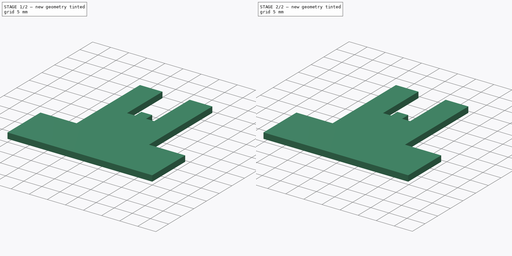
[diagram: build sequence overview — one tinted view per stage of 2, left to right]
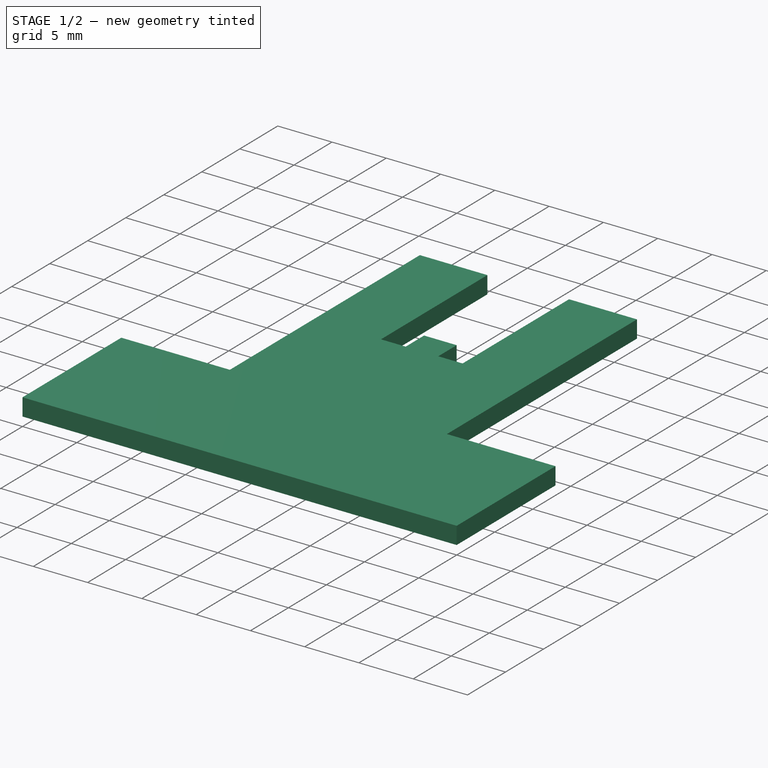
[diagram: stage 1 of 2 — iso view after this stage's code; geometry added in this stage tinted green]
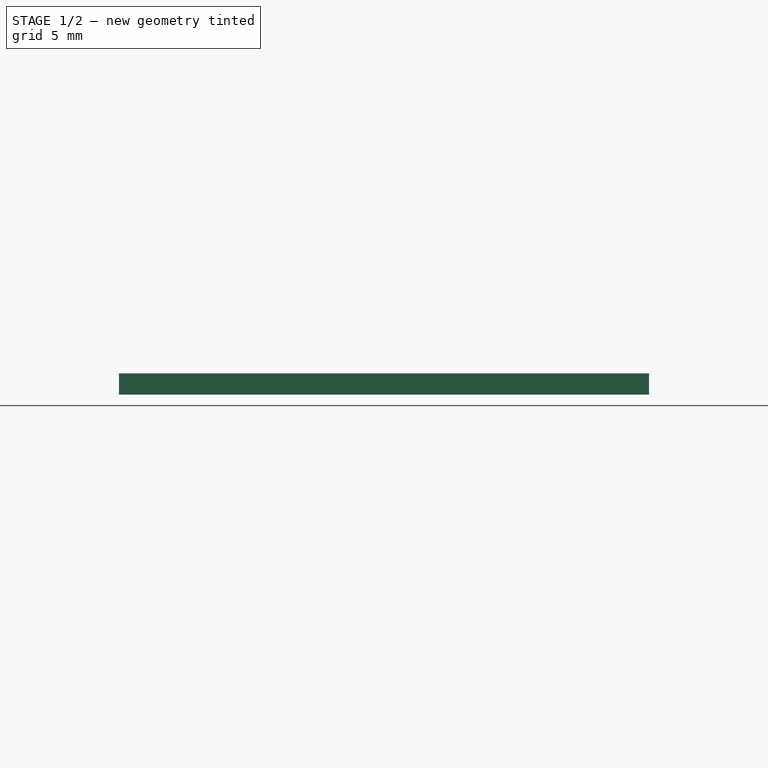
[diagram: stage 1 of 2 — front view after this stage's code; geometry added in this stage tinted green]
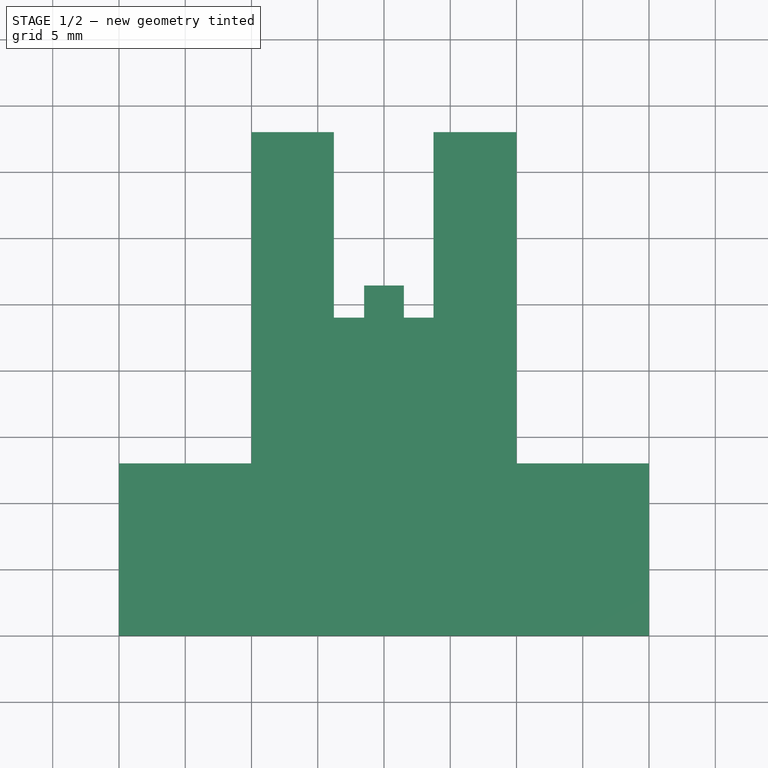
[diagram: stage 1 of 2 — top view after this stage's code; geometry added in this stage tinted green]
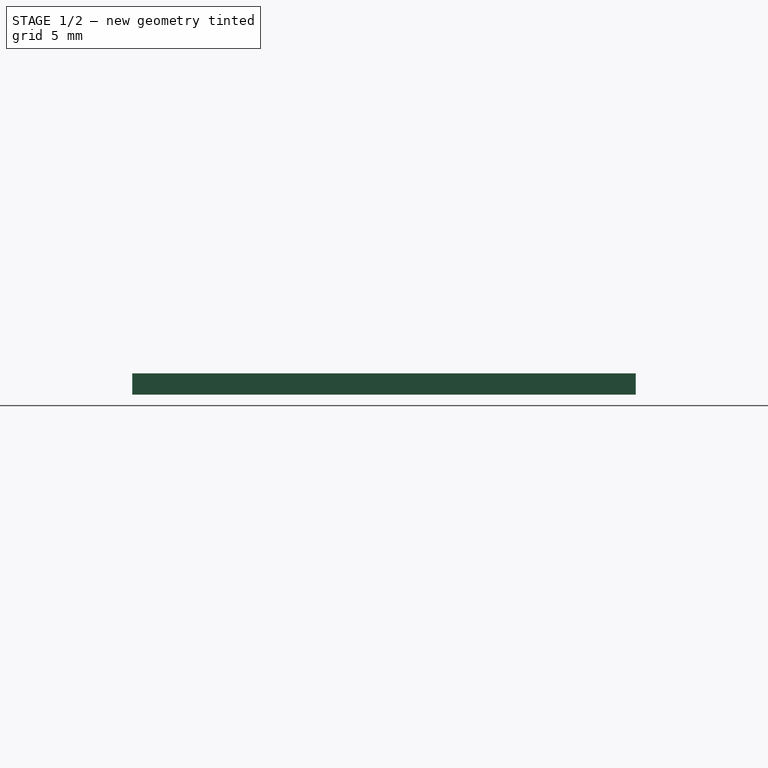
[diagram: stage 1 of 2 — right view after this stage's code; geometry added in this stage tinted green]
FCSTD DOCUMENT  (FreeCAD 0.21R0.21.1)
Label: CryoPCB_C3S3
License: All rights reserved
LicenseURL: https://en.wikipedia.org/wiki/All_rights_reserved
objects: Sketcher::SketchObject×1, PartDesign::Pad×1, PartDesign::Body×1, Part::Compound×1
note: 5 computed .brp shape members not serialized (recipe doc carries the construction recipe); baked Part::Feature solids carry a one-line shape summary decoded from their .brp

FEATURE [Sketcher::SketchObject] Sketch
  FullyConstrained = true
  MapMode = 5
  Support = -> [XY_Plane]
  sketch-geometry (16):
    g0: LineSegment StartX=0 StartY=0 StartZ=0 EndX=40 EndY=0 EndZ=0
    g1: LineSegment StartX=40 StartY=0 StartZ=0 EndX=40 EndY=13 EndZ=0
    g2: LineSegment StartX=40 StartY=13 StartZ=0 EndX=30 EndY=13 EndZ=0
    g3: LineSegment StartX=30 StartY=13 StartZ=0 EndX=30 EndY=38 EndZ=0
    g4: LineSegment StartX=30 StartY=38 StartZ=0 EndX=23.74 EndY=38 EndZ=0
    g5: LineSegment StartX=23.74 StartY=38 StartZ=0 EndX=23.74 EndY=24 EndZ=0
    g6: LineSegment StartX=23.74 StartY=24 StartZ=0 EndX=21.5 EndY=24 EndZ=0
    g7: LineSegment StartX=21.5 StartY=24 StartZ=0 EndX=21.5 EndY=26.42 EndZ=0
    g8: LineSegment StartX=21.5 StartY=26.42 StartZ=0 EndX=18.5 EndY=26.42 EndZ=0
    g9: LineSegment StartX=18.5 StartY=26.42 StartZ=0 EndX=18.5 EndY=24 EndZ=0
    g10: LineSegment StartX=18.5 StartY=24 StartZ=0 EndX=16.22 EndY=24 EndZ=0
    g11: LineSegment StartX=16.22 StartY=24 StartZ=0 EndX=16.22 EndY=38 EndZ=0
    g12: LineSegment StartX=16.22 StartY=38 StartZ=0 EndX=10 EndY=38 EndZ=0
    g13: LineSegment StartX=10 StartY=38 StartZ=0 EndX=10 EndY=13 EndZ=0
    g14: LineSegment StartX=10 StartY=13 StartZ=0 EndX=0 EndY=13 EndZ=0
    g15: LineSegment StartX=0 StartY=13 StartZ=0 EndX=0 EndY=0 EndZ=0
  constraints (47):
    c: Coincident(g-1,g0)
    c: Horizontal(g0)
    c: Coincident(g0,g1)
    c: Vertical(g1)
    c: Coincident(g1,g2)
    c: Horizontal(g2)
    c: Coincident(g2,g3)
    c: Vertical(g3)
    c: Coincident(g3,g4)
    c: Horizontal(g4)
    c: Coincident(g4,g5)
    c: Vertical(g5)
    c: Coincident(g5,g6)
    c: Horizontal(g6)
    c: Coincident(g6,g7)
    c: Vertical(g7)
    c: Coincident(g7,g8)
    c: Horizontal(g8)
    c: Coincident(g8,g9)
    c: Vertical(g9)
    c: Coincident(g9,g10)
    c: Horizontal(g10)
    c: Coincident(g10,g11)
    c: Vertical(g11)
    c: Coincident(g11,g12)
    c: Horizontal(g12)
    c: Coincident(g12,g13)
    c: Vertical(g13)
    c: Coincident(g13,g14)
    c: Horizontal(g14)
    c: Coincident(g14,g15)
    c: Coincident(g15,g0)
    c: Vertical(g15)
    c: DistanceX(g0,g0) = 40
    c: DistanceY(g1,g1) = 13
    c: DistanceX(g2,g2) = 10
    c: DistanceY(g15,g15) = 13
    c: DistanceY(g13,g13) = 25
    c: DistanceY(g3,g3) = 25
    c: DistanceY(g7,g7) = 2.42
    c: DistanceY(g9,g9) = 2.42
    c: DistanceX(g8,g8) = 3
    c: DistanceX(g6,g6) = 2.24
    c: DistanceX(g10,g10) = 2.28
    c: DistanceX(g4,g4) = 6.26
    c: DistanceX(g12,g12) = 6.22
    c: DistanceY(g11,g11) = 14
FEATURE [PartDesign::Pad] Pad
  AttacherType = Attacher::AttachEngine3D
  Direction = (0,0,1)
  Length = 1.6
  Length2 = 10
  Profile = -> Sketch
  ReferenceAxis = -> Sketch [N_Axis]
  Type = 0
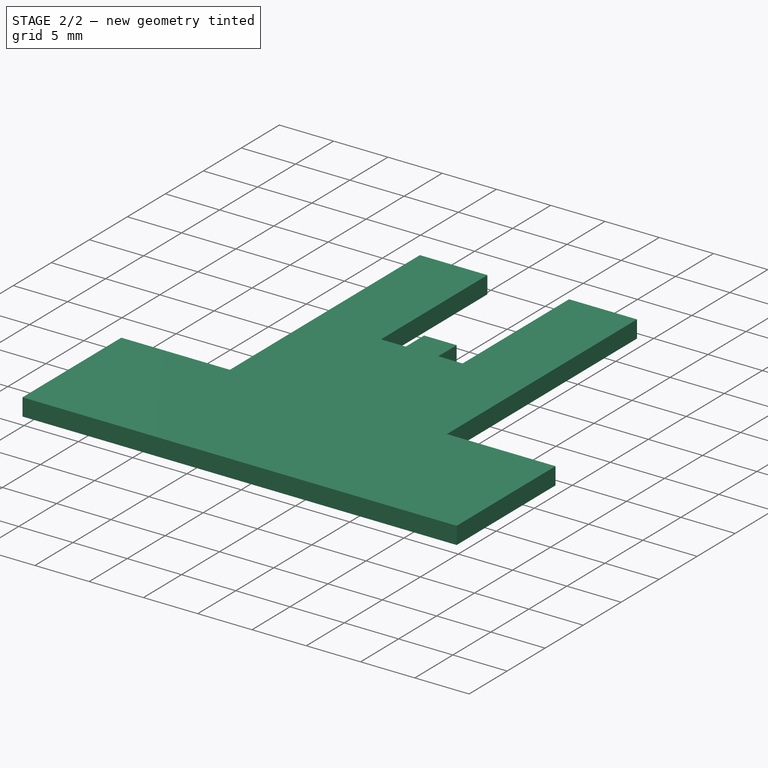
[diagram: stage 2 of 2 — iso view after this stage's code; geometry added in this stage tinted green]
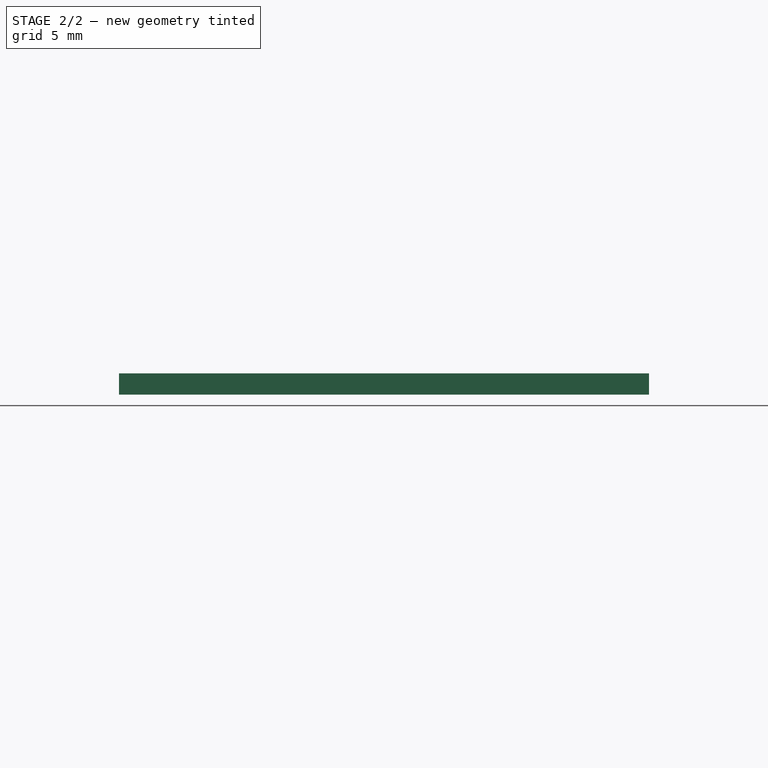
[diagram: stage 2 of 2 — front view after this stage's code; geometry added in this stage tinted green]
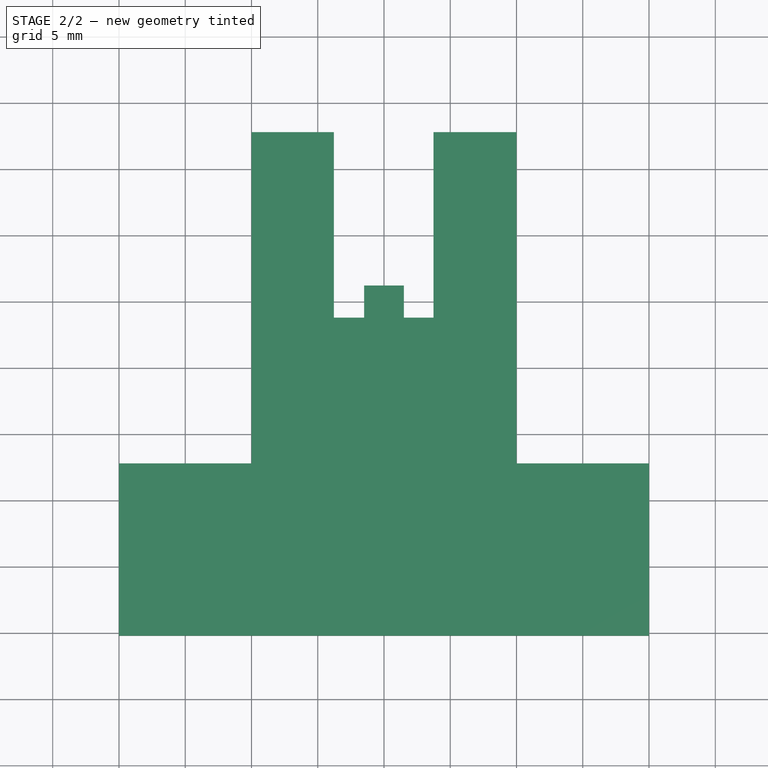
[diagram: stage 2 of 2 — top view after this stage's code; geometry added in this stage tinted green]
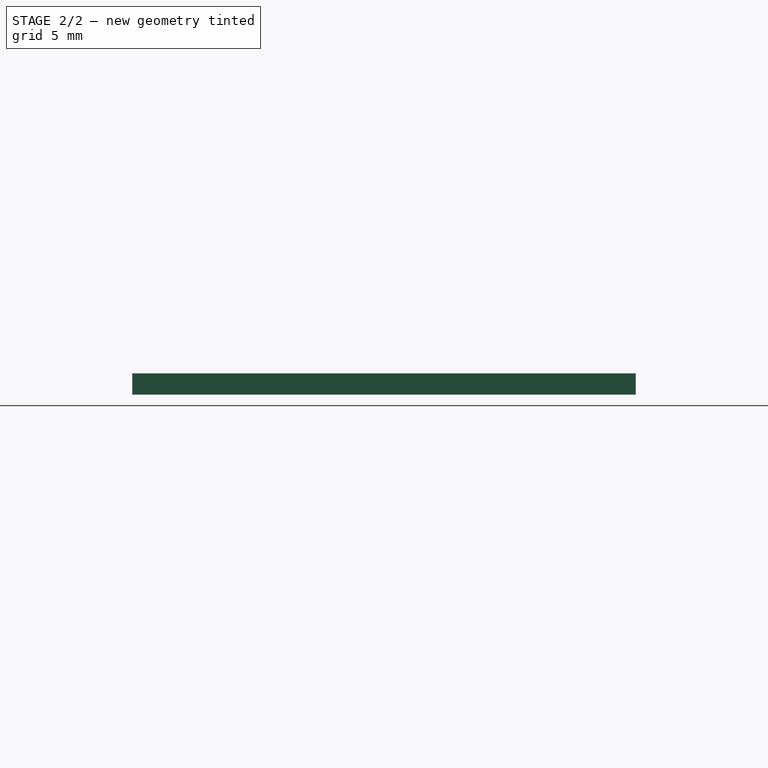
[diagram: stage 2 of 2 — right view after this stage's code; geometry added in this stage tinted green]
FEATURE [PartDesign::Body] Body  label="PCBBaseMaterial"
  AttacherType = Attacher::AttachEngine3D
  Group = -> [Sketch,Pad]
  MapMode = 5
  Origin = -> Origin
  Placement = pos=(0,0,1.6) rot=(0,0,1;0rad)
  Support = -> [Pad]
  Tip = -> Pad
FEATURE [Part::Compound] Compound
  Links = -> [Body]
  Placement = pos=(-20,-25.21,0) rot=(0,0,1;0rad)
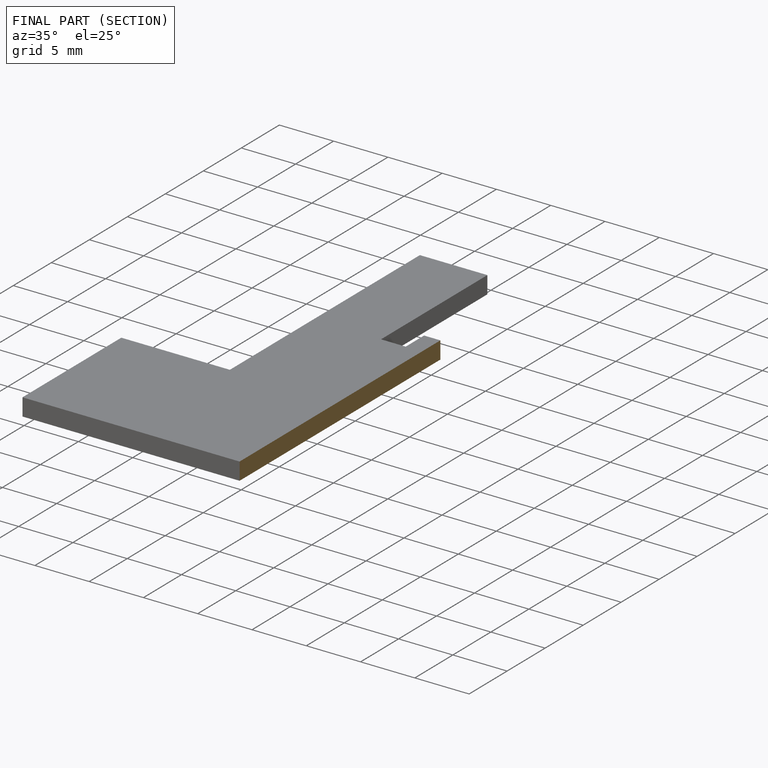
[diagram: finished part — half-section view (interior)]
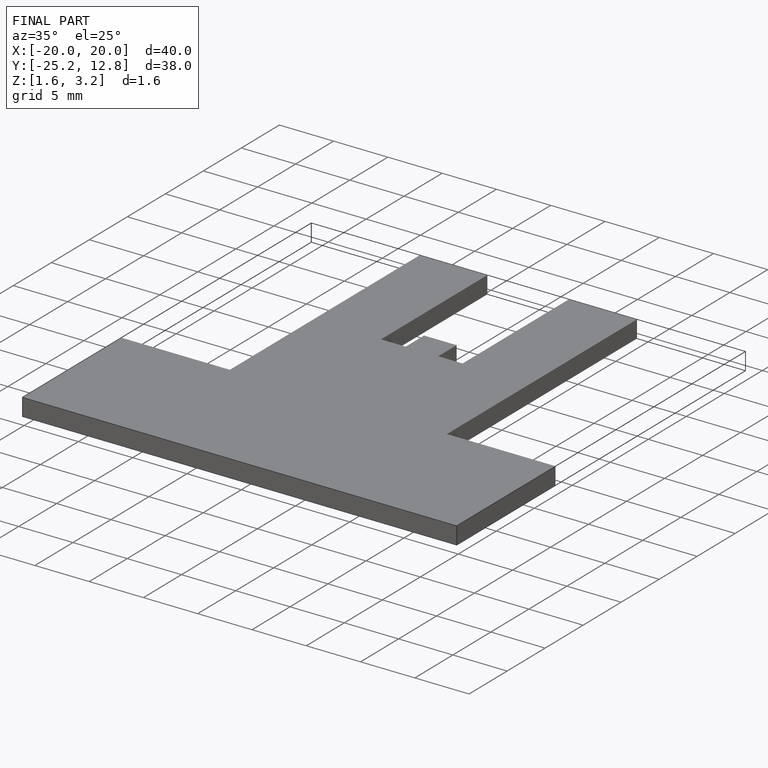
[diagram: finished part — iso view with bounding-box wireframe]
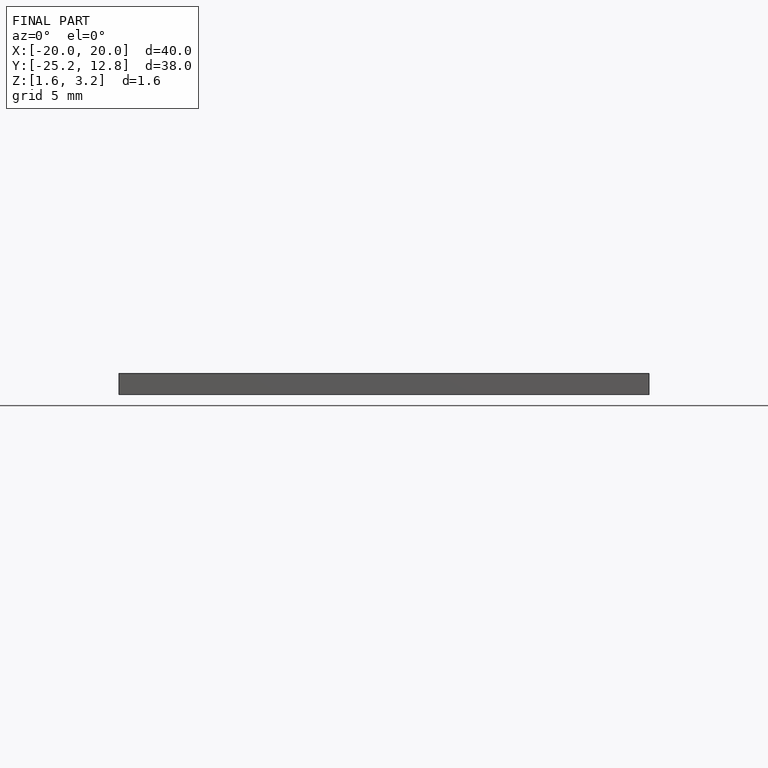
[diagram: finished part — front view with bounding-box wireframe]
